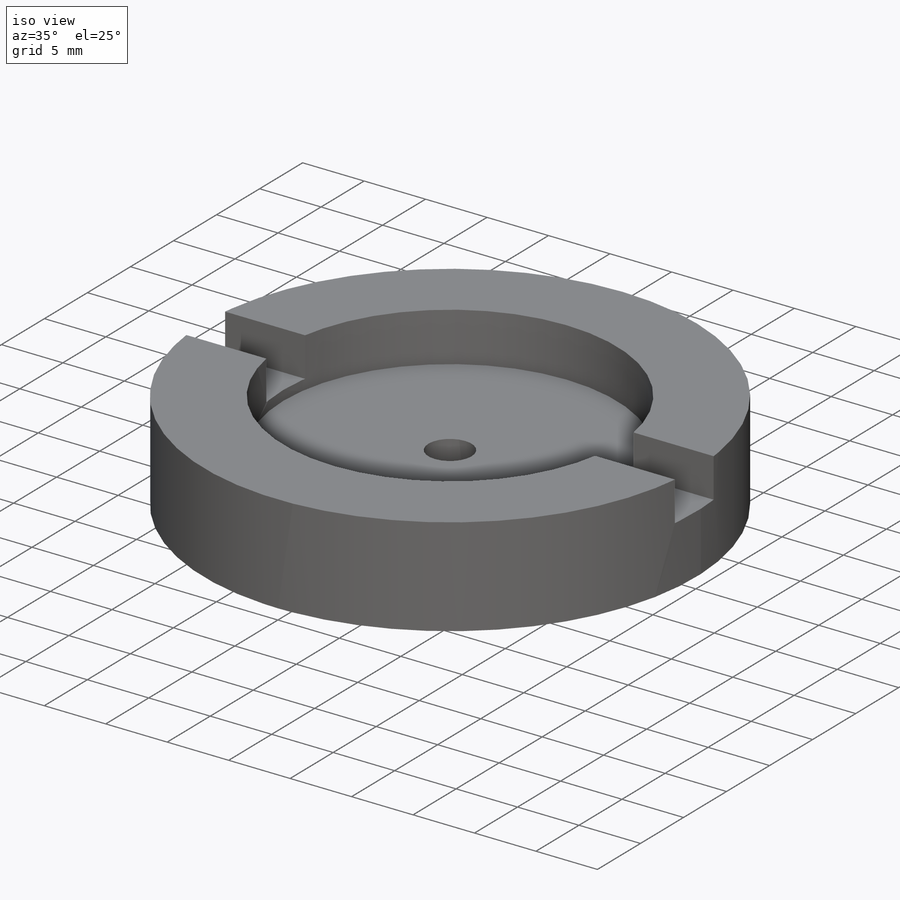
[diagram: iso view]
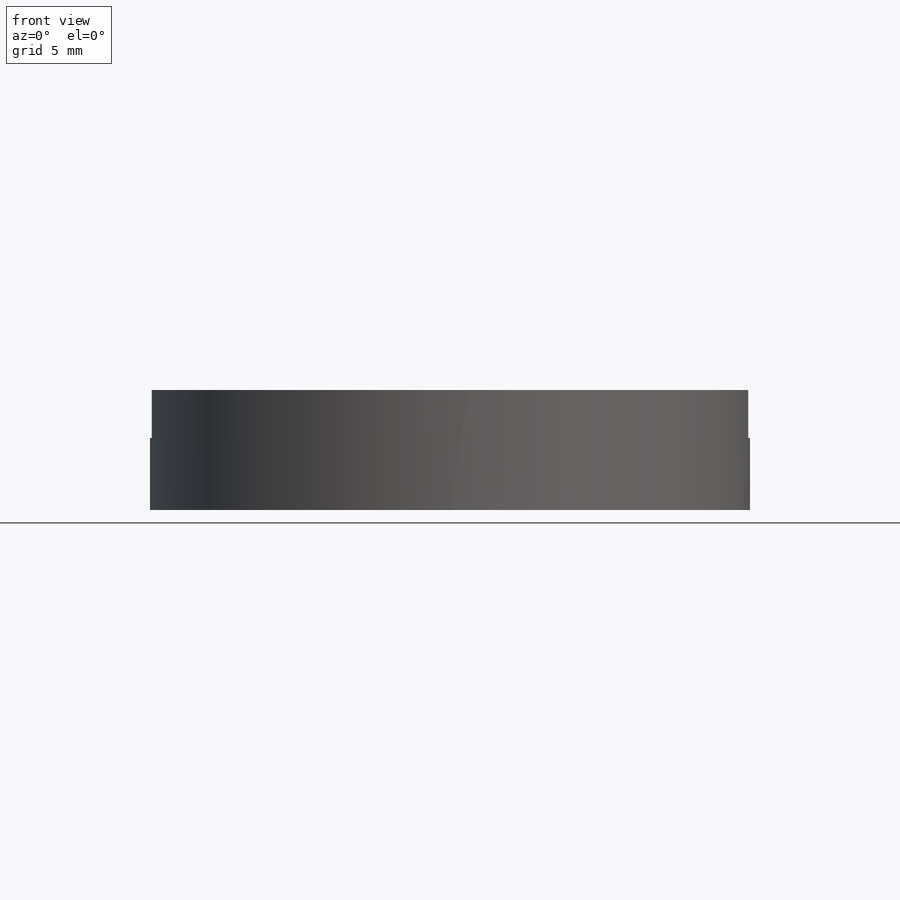
[diagram: front view]
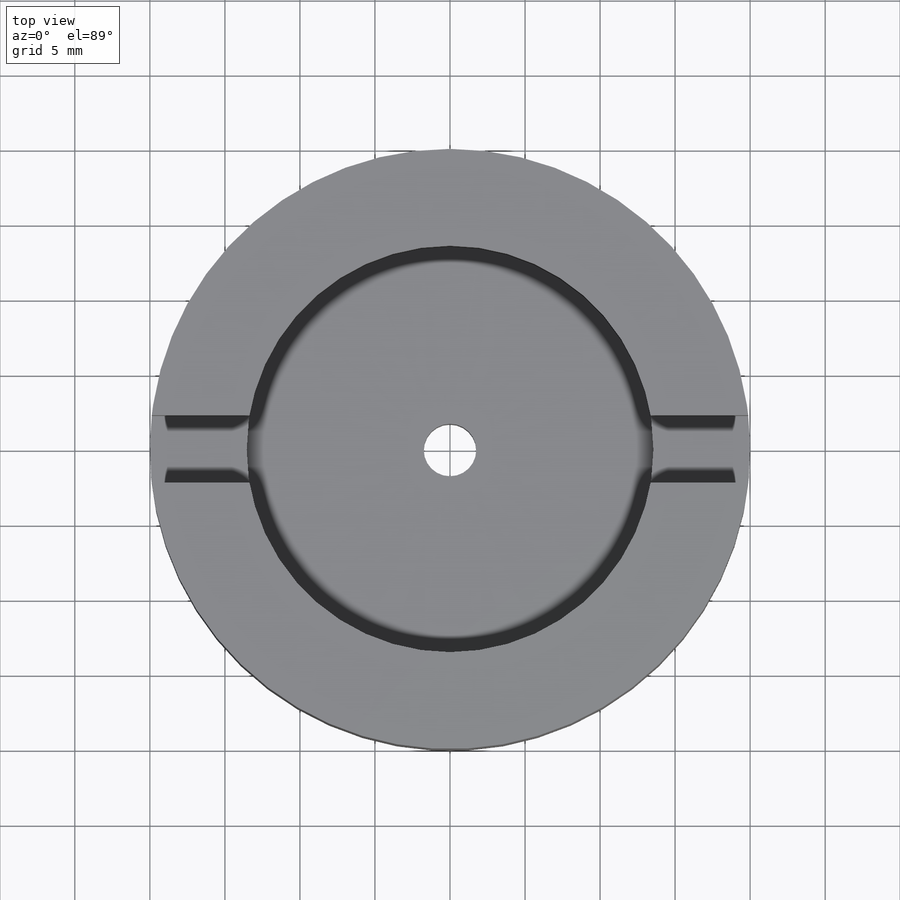
[diagram: top view]
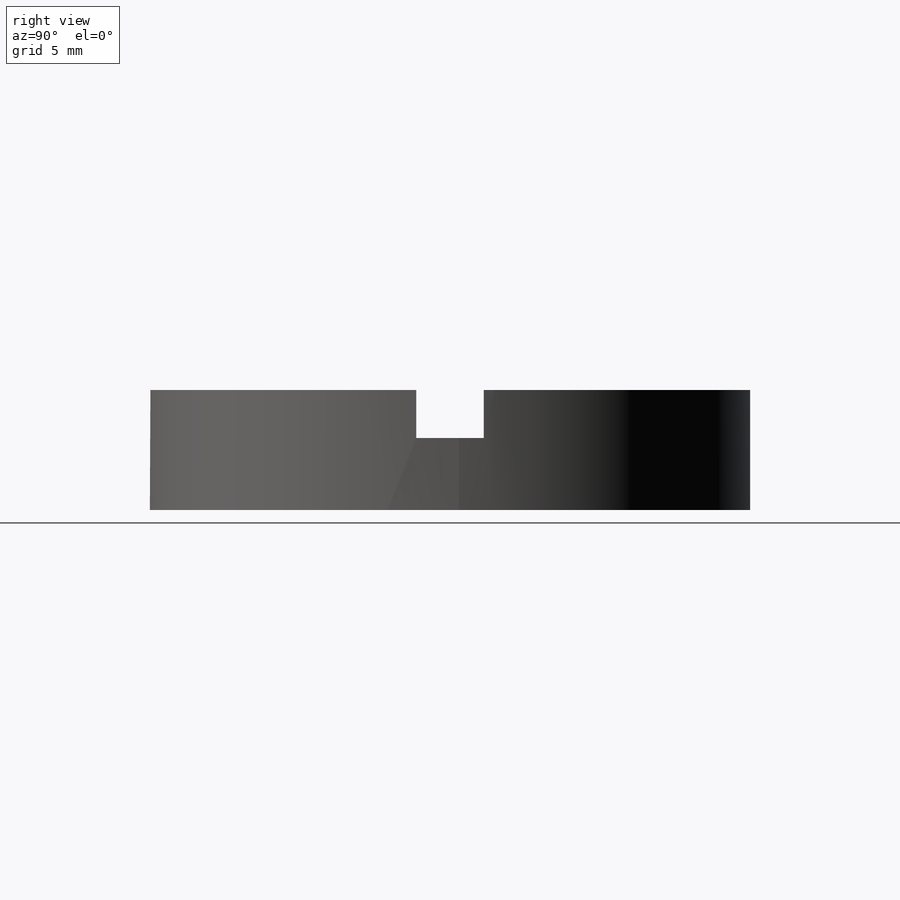
[diagram: right view]
SOLIDWORKS PART (.sldprt)
format: sldprt  version: not decoded by parser v0  size: 147,968 bytes
history: native  units: mm
features: sketch x4, plane x3, cut_extrude x3, material x1, extrude x1 (+8 scaffold rows collapsed)
feature tree (20):
  scaffold x8  (default folders/planes/origin — collapsed)
  material  "Materiale <non specificato>"
  plane  "Piano frontale"
  plane  "Piano superiore"
  plane  "Piano destro"
  sketch  "Schizzo1"  dims[D1=~33.75718mm]
  extrude  "Estrusione-Estrusione1"  Depth=8mm
  sketch  "Schizzo2"  dims[D1=27.1mm]
  cut_extrude  "Taglio-Estrusione1"  Depth=4mm
  sketch  "Schizzo3"  dims[D1=4.5mm]
  cut_extrude  "Taglio-Estrusione2"  Depth=3.2mm
  sketch  "Schizzo4"  dims[D1=~3.544997mm]
  cut_extrude  "Taglio-Estrusione3"  [1 undecoded]
decode coverage: 7 of 8 modeling features carry decoded parameters
note: ~ marks probable driven/reference dimensions
note: 1 parameter value undecoded
note: suppression state not decoded; provenance and decode notes live in map.json
